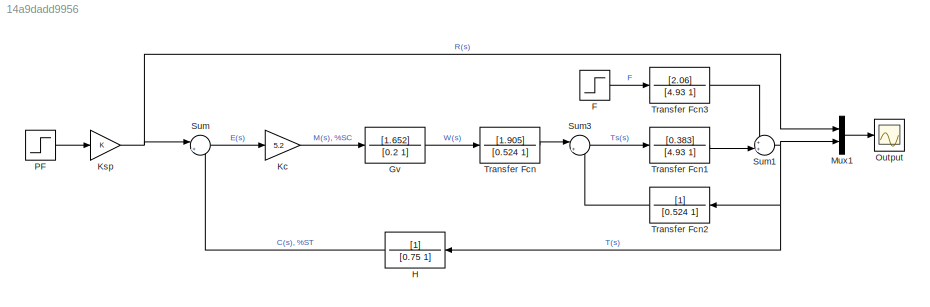
MODEL slx_14a9dadd9956
KIND model
CONFIG AbsTol = auto
CONFIG FixedStep = auto
CONFIG MaxStep = auto
CONFIG MinStep = auto
CONFIG RelTol = 1e-3
CONFIG SampleTimeConstraint = Unconstrained
CONFIG Solver = VariableStepAuto
CONFIG SolverMode = Auto
CONFIG SolverName = VariableStepAuto
CONFIG StartTime = 0.0
CONFIG StopTime = 20
BLOCK [Step] F
  SampleTime = 0
BLOCK [TransferFcn] Gv
  Denominator = [0.2 1]
  Numerator = [1.652]
BLOCK [TransferFcn] H
  Denominator = [0.75 1]
BLOCK [Gain] Kc
  Gain = 5.2
  OutDataTypeStr = Inherit: Inherit via internal rule
  ParamDataTypeStr = Inherit: Inherit via internal rule
  SaturateOnIntegerOverflow = off
BLOCK [Gain] Ksp
  OutDataTypeStr = Inherit: Inherit via internal rule
  ParamDataTypeStr = Inherit: Inherit via internal rule
  SaturateOnIntegerOverflow = off
BLOCK [Mux] Mux1
  DisplayOption = bar
  Inputs = 2
  Ports = [2, 1]
BLOCK [Scope] Output
  Ports = [1]
  ScopeSpecificationString = Simulink.scopes.TimeScopeBlockCfg('CurrentConfiguration', extmgr.ConfigurationSet(extmgr.Configuration('Core','General UI',true),extmgr.Configuration('Core','Source UI',true),extmgr.Configuration('Sources','WiredSimulink',true,'DataLoggingVariableName','ScopeData1'),extmgr.Configuration('Visuals','Time Domain',true,'SerializedDisplays',{struct('MinYLimReal','-0.24971','MaxYLimReal','2.24736','YLab...<+1368ch>
BLOCK [Step] PF
  SampleTime = 0
BLOCK [Sum] Sum
  IconShape = round
  InputSameDT = off
  Inputs = |+-
  OutDataTypeStr = Inherit: Inherit via internal rule
  Ports = [2, 1]
  SaturateOnIntegerOverflow = off
BLOCK [Sum] Sum1
  IconShape = round
  InputSameDT = off
  Inputs = ++|
  OutDataTypeStr = Inherit: Inherit via internal rule
  Ports = [2, 1]
  SaturateOnIntegerOverflow = off
BLOCK [Sum] Sum3
  IconShape = round
  InputSameDT = off
  Inputs = |++
  OutDataTypeStr = Inherit: Inherit via internal rule
  Ports = [2, 1]
  SaturateOnIntegerOverflow = off
BLOCK [TransferFcn] Transfer Fcn
  Denominator = [0.524 1]
  Numerator = [1.905]
BLOCK [TransferFcn] Transfer Fcn1
  Denominator = [4.93 1]
  Numerator = [0.383]
BLOCK [TransferFcn] Transfer Fcn2
  Denominator = [0.524 1]
BLOCK [TransferFcn] Transfer Fcn3
  Denominator = [4.93 1]
  Numerator = [2.06]
LINE F:1 -> Transfer Fcn3:1
LINE Gv:1 -> Transfer Fcn:1
LINE H:1 -> Sum:2
LINE Kc:1 -> Gv:1
NET Ksp:1 -> Mux1:1, Sum:1
LINE Mux1:1 -> Output:1
LINE PF:1 -> Ksp:1
NET Sum1:1 -> H:1, Mux1:2, Transfer Fcn2:1
LINE Sum3:1 -> Transfer Fcn1:1
LINE Sum:1 -> Kc:1
LINE Transfer Fcn1:1 -> Sum1:2
LINE Transfer Fcn2:1 -> Sum3:2
LINE Transfer Fcn3:1 -> Sum1:1
LINE Transfer Fcn:1 -> Sum3:1
note: NET lines group one-source signal fan-out (src -> all destinations, sorted); 1:1 wires keep LINE
